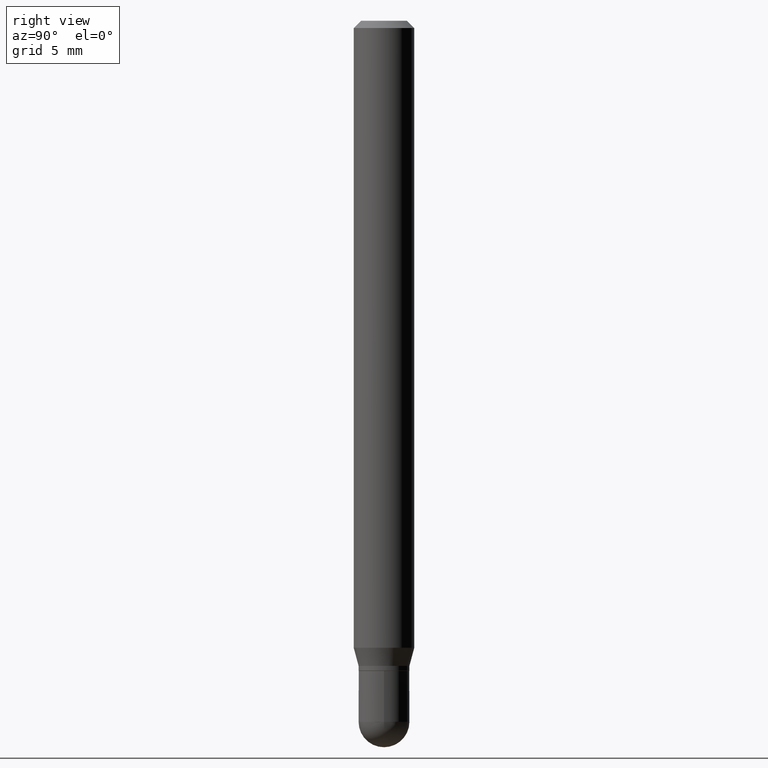
[diagram: clean part render]
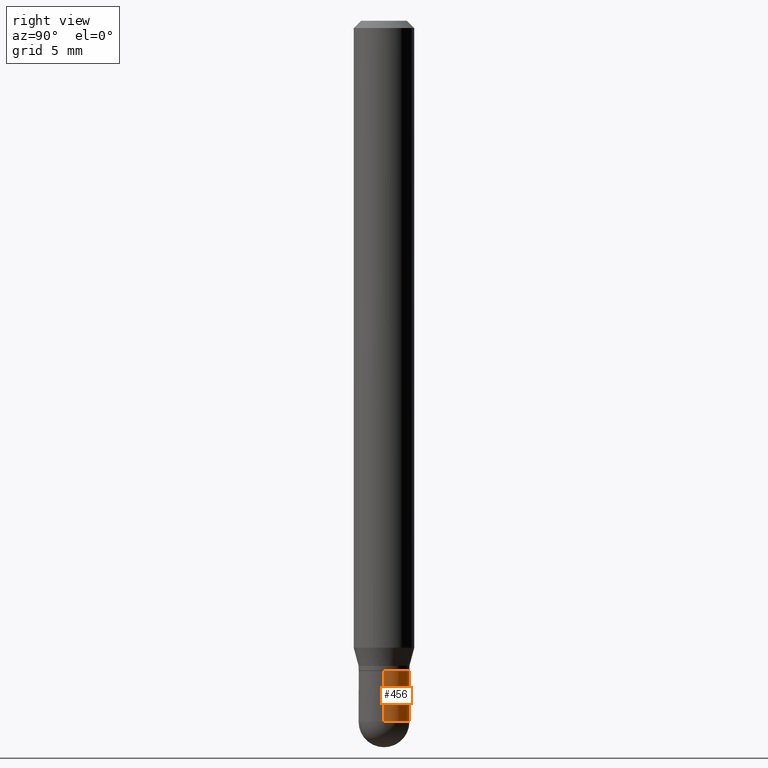
[diagram: same view with one face highlighted and labeled with its STEP entity id]
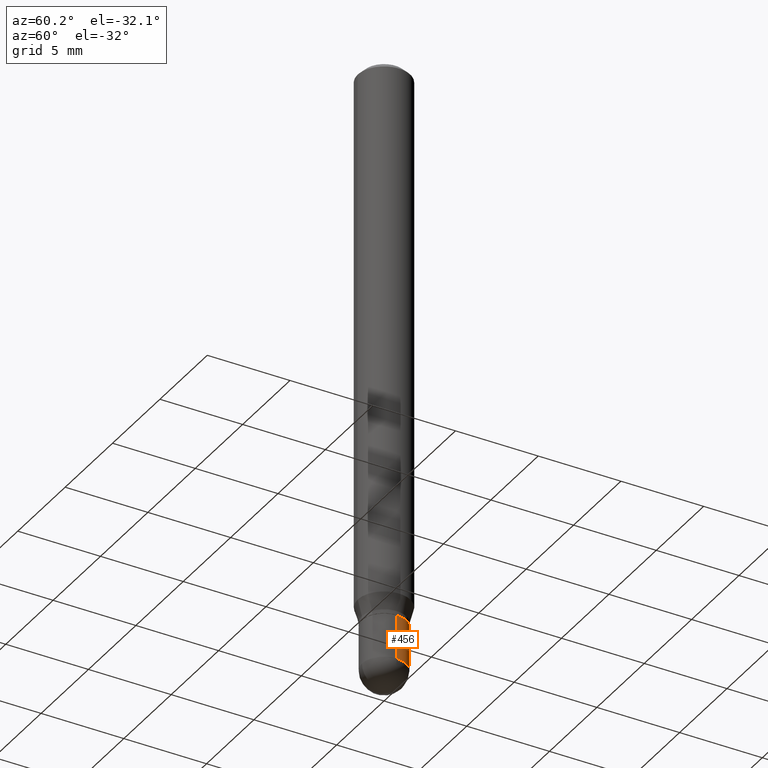
[diagram: same view with one face highlighted and labeled with its STEP entity id]
A machine part, right view. The second image highlights one B-rep face of the part: STEP entity #456.
A second angle (auxiliary view) of the same face is appended — the face is thin or edge-on in the first view.
In plain terms, the highlighted cylindrical surface (edge-blend (fillet) strip) has radius 1.3335 mm, axis along (-0, 0, 1).
Its self-contained STEP definition (entity closure, byte-faithful):
#3 = CARTESIAN_POINT ( 'NONE',  ( 0.000000000000000000, 0.000000000000000000, 0.000000000000000000 ) ) ;
#8 = AXIS2_PLACEMENT_3D ( 'NONE', #260, #219, #420 ) ;
#14 = VERTEX_POINT ( 'NONE', #481 ) ;
#33 = ORIENTED_EDGE ( 'NONE', *, *, #223, .F. ) ;
#37 = VERTEX_POINT ( 'NONE', #464 ) ;
#40 = VERTEX_POINT ( 'NONE', #91 ) ;
#44 = EDGE_CURVE ( 'NONE', #37, #40, #460, .T. ) ;
#56 = ORIENTED_EDGE ( 'NONE', *, *, #44, .T. ) ;
#85 = VECTOR ( 'NONE', #457, 39.37007874015748143 ) ;
#91 = CARTESIAN_POINT ( 'NONE',  ( -0.05249999999999999806, -4.496708661077424547E-15, -1.447499999999999787 ) ) ;
#92 = CARTESIAN_POINT ( 'NONE',  ( -0.05249999999999999806, -4.496708661077424547E-15, -1.342000000000000082 ) ) ;
#101 = AXIS2_PLACEMENT_3D ( 'NONE', #3, #317, #184 ) ;
#109 = AXIS2_PLACEMENT_3D ( 'NONE', #307, #189, #423 ) ;
#120 = ORIENTED_EDGE ( 'NONE', *, *, #291, .F. ) ;
#152 = ORIENTED_EDGE ( 'NONE', *, *, #475, .T. ) ;
#154 = VERTEX_POINT ( 'NONE', #92 ) ;
#183 = CARTESIAN_POINT ( 'NONE',  ( 3.281819137900453057E-29, -4.685567956727500961E-15, -1.342000000000000082 ) ) ;
#184 = DIRECTION ( 'NONE',  ( 1.000000000000000000, -6.982962677686265922E-15, 4.876176775795935232E-29 ) ) ;
#189 = DIRECTION ( 'NONE',  ( -2.445468806185136597E-29, 3.491481338843145583E-15, 1.000000000000000000 ) ) ;
#208 = DIRECTION ( 'NONE',  ( -2.445468806185136877E-29, 3.491481338843145188E-15, 1.000000000000000000 ) ) ;
#219 = DIRECTION ( 'NONE',  ( -2.445468806185136597E-29, 3.491481338843145583E-15, 1.000000000000000000 ) ) ;
#223 = EDGE_CURVE ( 'NONE', #309, #154, #241, .T. ) ;
#241 = CIRCLE ( 'NONE', #310, 0.05249999999999999806 ) ;
#260 = CARTESIAN_POINT ( 'NONE',  ( 3.539816096952984843E-29, -5.053919237975452413E-15, -1.447499999999999787 ) ) ;
#291 = EDGE_CURVE ( 'NONE', #14, #309, #498, .T. ) ;
#297 = CARTESIAN_POINT ( 'NONE',  ( 0.05249999999999999806, -3.666055405785289629E-16, 2.559992807292866011E-30 ) ) ;
#307 = CARTESIAN_POINT ( 'NONE',  ( 3.539816096952984843E-29, -5.053919237975452413E-15, -1.447499999999999787 ) ) ;
#309 = VERTEX_POINT ( 'NONE', #479 ) ;
#310 = AXIS2_PLACEMENT_3D ( 'NONE', #183, #422, #443 ) ;
#317 = DIRECTION ( 'NONE',  ( -2.445468806185136597E-29, 3.491481338843145583E-15, 1.000000000000000000 ) ) ;
#355 = LINE ( 'NONE', #399, #496 ) ;
#357 = CYLINDRICAL_SURFACE ( 'NONE', #101, 0.05249999999999999806 ) ;
#391 = CIRCLE ( 'NONE', #109, 0.05249999999999999806 ) ;
#399 = CARTESIAN_POINT ( 'NONE',  ( -0.05249999999999999806, 3.730349362740525838E-16, -2.582440922383825311E-30 ) ) ;
#407 = EDGE_CURVE ( 'NONE', #40, #154, #355, .T. ) ;
#420 = DIRECTION ( 'NONE',  ( 1.000000000000000000, -6.982962677686268288E-15, 0.000000000000000000 ) ) ;
#422 = DIRECTION ( 'NONE',  ( -2.445468806185136597E-29, 3.491481338843145583E-15, 1.000000000000000000 ) ) ;
#423 = DIRECTION ( 'NONE',  ( 1.000000000000000000, -6.982962677686268288E-15, 0.000000000000000000 ) ) ;
#436 = EDGE_LOOP ( 'NONE', ( #56, #488, #33, #120, #152 ) ) ;
#437 = FACE_OUTER_BOUND ( 'NONE', #436, .T. ) ;
#443 = DIRECTION ( 'NONE',  ( 1.000000000000000000, -6.982962677686268288E-15, 0.000000000000000000 ) ) ;
#456 = ADVANCED_FACE ( 'NONE', ( #437 ), #357, .T. ) ;
#457 = DIRECTION ( 'NONE',  ( -2.445468806185136877E-29, 3.491481338843145188E-15, 1.000000000000000000 ) ) ;
#460 = CIRCLE ( 'NONE', #8, 0.05249999999999999806 ) ;
#464 = CARTESIAN_POINT ( 'NONE',  ( 3.666055405785644616E-16, 0.05249999999999494654, -1.447500000000000009 ) ) ;
#475 = EDGE_CURVE ( 'NONE', #14, #37, #391, .T. ) ;
#479 = CARTESIAN_POINT ( 'NONE',  ( 0.05249999999999999806, -5.052173497306030121E-15, -1.342000000000000082 ) ) ;
#481 = CARTESIAN_POINT ( 'NONE',  ( 0.05249999999999999806, -5.236349137930005453E-15, -1.447499999999999787 ) ) ;
#488 = ORIENTED_EDGE ( 'NONE', *, *, #407, .T. ) ;
#496 = VECTOR ( 'NONE', #208, 39.37007874015748143 ) ;
#498 = LINE ( 'NONE', #297, #85 ) ;